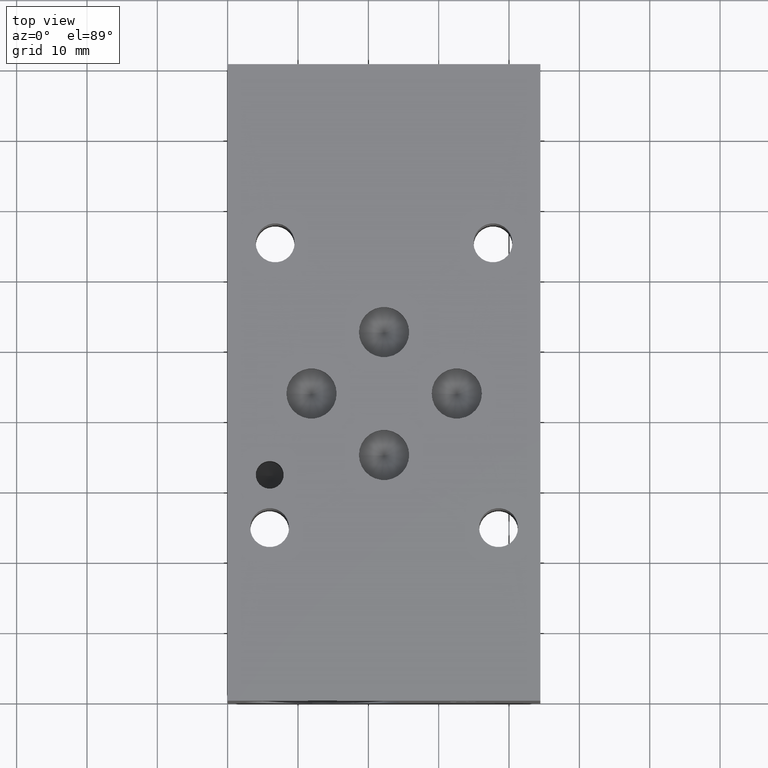
[diagram: clean part render]
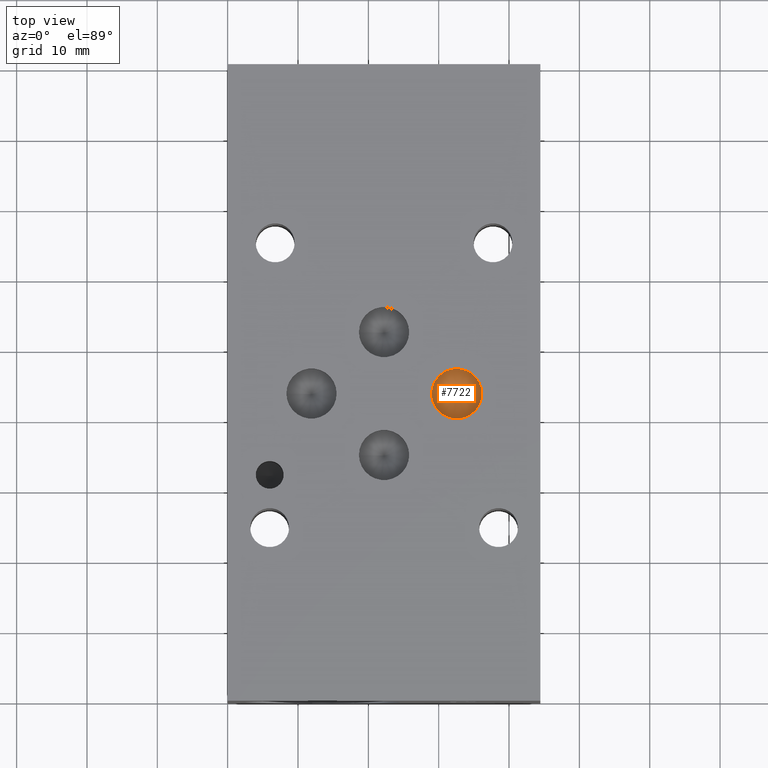
[diagram: same view with one face highlighted and labeled with its STEP entity id]
A machine part, top view. The second image highlights one B-rep face of the part: STEP entity #7722.
In plain terms, the highlighted conical surface has half-angle 60 deg.
Its self-contained STEP definition (entity closure, byte-faithful):
#51=CONICAL_SURFACE('',#8098,1.78435,1.0471975511966);
#100=CIRCLE('',#8099,3.5687);
#807=FACE_OUTER_BOUND('',#1245,.T.);
#1245=EDGE_LOOP('',(#6655,#6656,#6657));
#2084=LINE('',#12870,#2902);
#2902=VECTOR('',#9623,1.78435);
#3598=VERTEX_POINT('',#12867);
#3599=VERTEX_POINT('',#12869);
#4632=EDGE_CURVE('',#3598,#3598,#100,.T.);
#4633=EDGE_CURVE('',#3598,#3599,#2084,.T.);
#6655=ORIENTED_EDGE('',*,*,#4632,.T.);
#6656=ORIENTED_EDGE('',*,*,#4633,.T.);
#6657=ORIENTED_EDGE('',*,*,#4633,.F.);
#7722=ADVANCED_FACE('',(#807),#51,.F.);
#8098=AXIS2_PLACEMENT_3D('',#12866,#9619,#9620);
#8099=AXIS2_PLACEMENT_3D('',#12868,#9621,#9622);
#9619=DIRECTION('center_axis',(0.,0.,1.));
#9620=DIRECTION('ref_axis',(1.,0.,0.));
#9621=DIRECTION('center_axis',(0.,0.,1.));
#9622=DIRECTION('ref_axis',(1.,0.,0.));
#9623=DIRECTION('',(0.866025403784439,1.06057523872491E-16,-0.5));
#12866=CARTESIAN_POINT('Origin',(32.5628,43.6626,22.3094150471715));
#12867=CARTESIAN_POINT('',(28.9941,43.6626,23.33961));
#12868=CARTESIAN_POINT('Origin',(32.5628,43.6626,23.33961));
#12869=CARTESIAN_POINT('',(32.5628,43.6626,21.279220094343));
#12870=CARTESIAN_POINT('',(30.77845,43.6626,22.3094150471715));